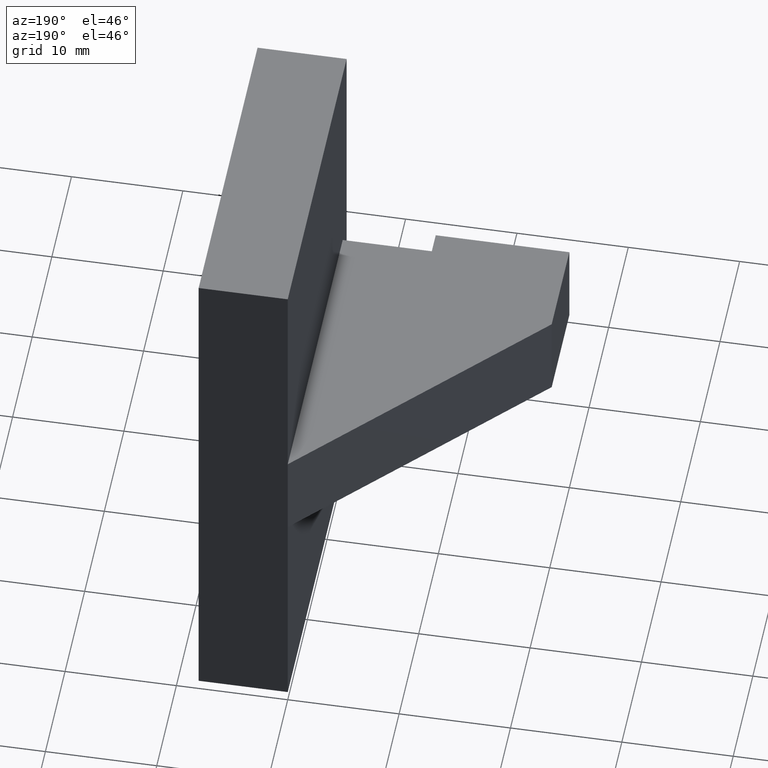
[diagram: clean part render]
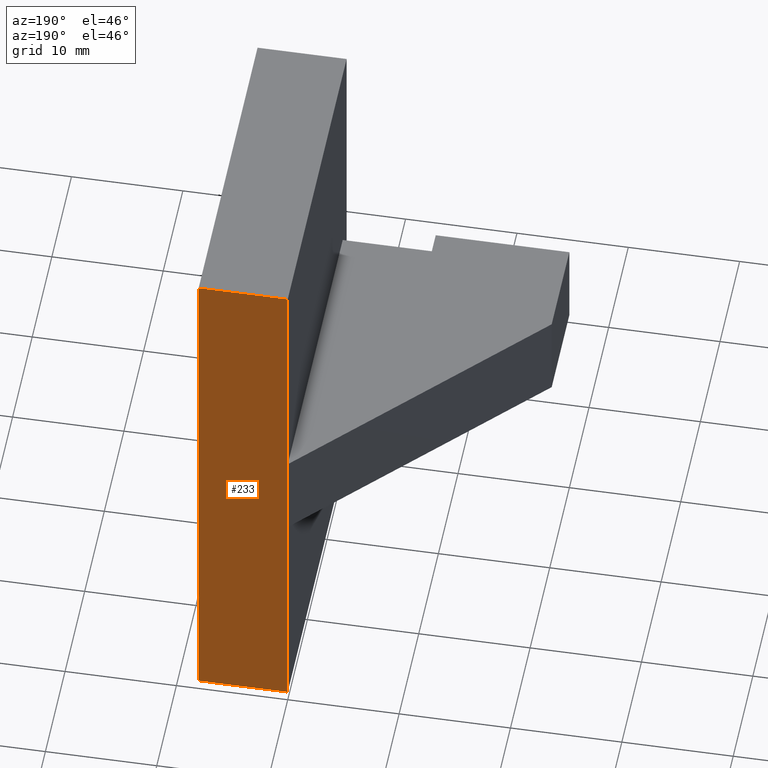
[diagram: same view with one face highlighted and labeled with its STEP entity id]
A machine part, auxiliary view. The second image highlights one B-rep face of the part: STEP entity #233.
In plain terms, the highlighted planar face has unit normal (-0, 1, -0).
Its self-contained STEP definition (entity closure, byte-faithful):
#19=FACE_OUTER_BOUND('',#32,.T.);
#32=EDGE_LOOP('',(#168,#169,#170,#171,#172,#173));
#46=LINE('',#349,#77);
#50=LINE('',#356,#81);
#52=LINE('',#361,#83);
#54=LINE('',#365,#85);
#55=LINE('',#366,#86);
#56=LINE('',#367,#87);
#77=VECTOR('',#287,10.);
#81=VECTOR('',#291,10.);
#83=VECTOR('',#295,10.);
#85=VECTOR('',#299,10.);
#86=VECTOR('',#300,10.);
#87=VECTOR('',#301,10.);
#105=VERTEX_POINT('',#341);
#108=VERTEX_POINT('',#346);
#109=VERTEX_POINT('',#348);
#112=VERTEX_POINT('',#354);
#114=VERTEX_POINT('',#359);
#115=VERTEX_POINT('',#364);
#128=EDGE_CURVE('',#109,#108,#46,.T.);
#132=EDGE_CURVE('',#105,#112,#50,.T.);
#134=EDGE_CURVE('',#112,#114,#52,.T.);
#136=EDGE_CURVE('',#114,#115,#54,.T.);
#137=EDGE_CURVE('',#109,#115,#55,.T.);
#138=EDGE_CURVE('',#105,#108,#56,.T.);
#168=ORIENTED_EDGE('',*,*,#136,.T.);
#169=ORIENTED_EDGE('',*,*,#137,.F.);
#170=ORIENTED_EDGE('',*,*,#128,.T.);
#171=ORIENTED_EDGE('',*,*,#138,.F.);
#172=ORIENTED_EDGE('',*,*,#132,.T.);
#173=ORIENTED_EDGE('',*,*,#134,.T.);
#220=PLANE('',#269);
#233=ADVANCED_FACE('',(#19),#220,.T.);
#269=AXIS2_PLACEMENT_3D('',#363,#297,#298);
#287=DIRECTION('',(-3.52170046973666E-32,8.88178419700125E-17,1.));
#291=DIRECTION('',(-3.52170046973666E-32,8.88178419700125E-17,1.));
#295=DIRECTION('',(1.,3.96508223080413E-16,0.));
#297=DIRECTION('center_axis',(-3.96508223080413E-16,1.,-8.88178419700125E-17));
#298=DIRECTION('ref_axis',(0.,8.88178419700125E-17,1.));
#299=DIRECTION('',(3.52170046973666E-32,-8.88178419700125E-17,-1.));
#300=DIRECTION('',(1.,3.96508223080413E-16,0.));
#301=DIRECTION('',(0.,0.,-1.));
#341=CARTESIAN_POINT('',(-8.88178419700125E-15,30.,4.));
#346=CARTESIAN_POINT('',(-8.88178419700125E-15,30.,-4.));
#348=CARTESIAN_POINT('',(-8.88178419700125E-15,30.,-25.));
#349=CARTESIAN_POINT('',(-8.88178419700125E-15,30.,-25.));
#354=CARTESIAN_POINT('',(-8.88178419700125E-15,30.,25.));
#356=CARTESIAN_POINT('',(-8.88178419700125E-15,30.,-25.));
#359=CARTESIAN_POINT('',(7.99999999999999,30.,25.));
#361=CARTESIAN_POINT('',(-8.88178419700125E-15,30.,25.));
#363=CARTESIAN_POINT('Origin',(-8.88178419700125E-15,30.,25.));
#364=CARTESIAN_POINT('',(7.99999999999999,30.,-25.));
#365=CARTESIAN_POINT('',(7.99999999999999,30.,-25.));
#366=CARTESIAN_POINT('',(-8.88178419700125E-15,30.,-25.));
#367=CARTESIAN_POINT('',(-8.88178419700125E-15,30.,0.));